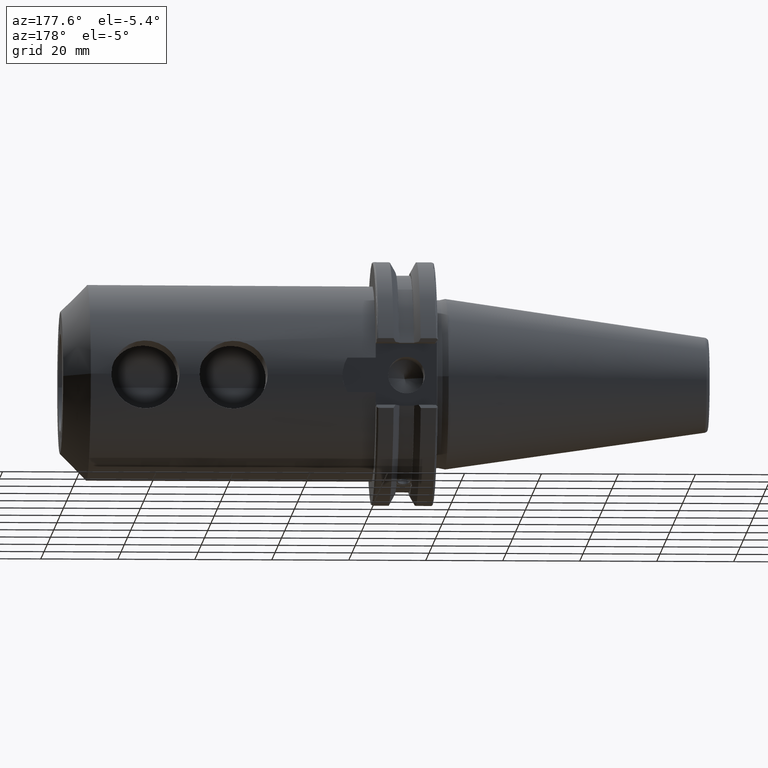
[diagram: clean part render]
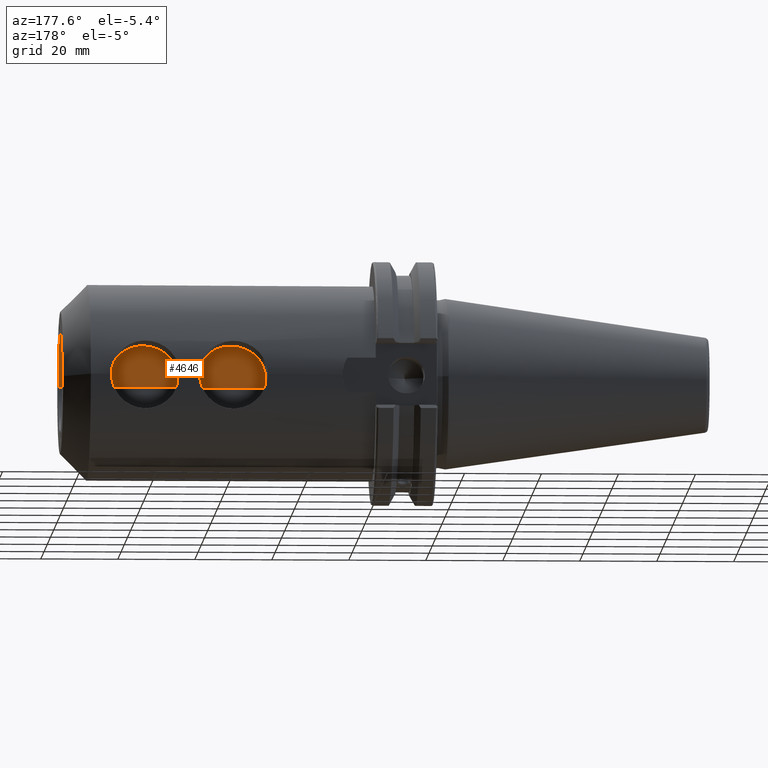
[diagram: same view with one face highlighted and labeled with its STEP entity id]
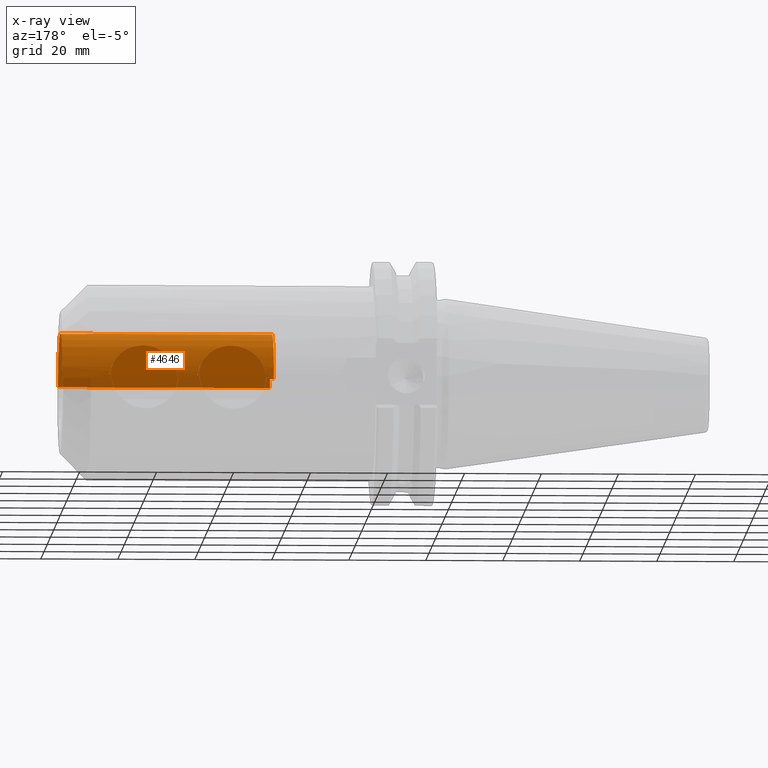
[diagram: x-ray of the same camera — body ghosted, the highlighted face saturated]
A machine part, auxiliary view. The second image highlights one B-rep face of the part: STEP entity #4646.
The next image is the same camera in x-ray: the body ghosted, the highlighted face saturated — about 8% of this face is hidden behind the body in this view.
In plain terms, the highlighted cylindrical surface (partial cylindrical patch) has radius 12.7 mm, axis along (1, 0, 0).
Its self-contained STEP definition (entity closure, byte-faithful):
#963=CARTESIAN_POINT('',(4.5E1,0.E0,0.E0));
#964=DIRECTION('',(1.E0,0.E0,0.E0));
#965=DIRECTION('',(0.E0,1.E0,0.E0));
#966=AXIS2_PLACEMENT_3D('',#963,#964,#965);
#989=DIRECTION('',(-1.E0,0.E0,0.E0));
#990=VECTOR('',#989,5.2E0);
#991=CARTESIAN_POINT('',(7.005E1,1.27E1,0.E0));
#992=LINE('',#991,#990);
#1014=DIRECTION('',(-1.E0,0.E0,0.E0));
#1015=VECTOR('',#1014,1.225E1);
#1016=CARTESIAN_POINT('',(1.E2,1.27E1,0.E0));
#1017=LINE('',#1016,#1015);
#1018=DIRECTION('',(-1.E0,0.E0,0.E0));
#1019=VECTOR('',#1018,5.5E1);
#1020=CARTESIAN_POINT('',(1.E2,-1.27E1,0.E0));
#1021=LINE('',#1020,#1019);
#1022=DIRECTION('',(-1.E0,0.E0,0.E0));
#1023=VECTOR('',#1022,2.15E0);
#1024=CARTESIAN_POINT('',(4.715E1,1.27E1,0.E0));
#1025=LINE('',#1024,#1023);
#1986=CARTESIAN_POINT('',(1.E2,0.E0,0.E0));
#1987=DIRECTION('',(1.E0,0.E0,0.E0));
#1988=DIRECTION('',(0.E0,1.E0,0.E0));
#1989=AXIS2_PLACEMENT_3D('',#1986,#1987,#1988);
#2036=CARTESIAN_POINT('',(4.715E1,1.27E1,0.E0));
#2037=CARTESIAN_POINT('',(4.715E1,1.27E1,5.563884474308E-1));
#2038=CARTESIAN_POINT('',(4.725072212443E1,1.262938159951E1,1.660641795529E0));
#2039=CARTESIAN_POINT('',(4.774431295707E1,1.229041067188E1,3.336053542291E0));
#2040=CARTESIAN_POINT('',(4.849654190077E1,1.179500249707E1,4.782429400616E0));
#2041=CARTESIAN_POINT('',(4.947679831123E1,1.119228425628E1,6.051278735868E0));
#2042=CARTESIAN_POINT('',(5.066338349235E1,1.053727068019E1,7.121190732831E0));
#2043=CARTESIAN_POINT('',(5.205986629046E1,9.893856332030E0,7.981560958703E0));
#2044=CARTESIAN_POINT('',(5.363104221772E1,9.364091712719E0,8.586080129339E0));
#2045=CARTESIAN_POINT('',(5.532052436495E1,9.090112058371E0,8.869123728081E0));
#2046=CARTESIAN_POINT('',(5.677413153862E1,9.097258907566E0,8.861997421768E0));
#2047=CARTESIAN_POINT('',(5.847296703081E1,9.391083508633E0,8.557244532327E0));
#2048=CARTESIAN_POINT('',(6.003518154509E1,9.933059887295E0,7.933384034520E0));
#2049=CARTESIAN_POINT('',(6.141229796415E1,1.057657854978E1,7.062801538793E0));
#2050=CARTESIAN_POINT('',(6.257633877491E1,1.122387157703E1,5.991901483512E0));
#2051=CARTESIAN_POINT('',(6.353491116155E1,1.181533216609E1,4.730551710827E0));
#2052=CARTESIAN_POINT('',(6.427031245631E1,1.230036902785E1,3.296584384085E0));
#2053=CARTESIAN_POINT('',(6.475243886877E1,1.263160414054E1,1.636917244227E0));
#2054=CARTESIAN_POINT('',(6.485E1,1.27E1,5.479562780156E-1));
#2055=CARTESIAN_POINT('',(6.485E1,1.27E1,0.E0));
#2057=CARTESIAN_POINT('',(7.005E1,1.27E1,0.E0));
#2058=CARTESIAN_POINT('',(7.005E1,1.27E1,5.488737394251E-1));
#2059=CARTESIAN_POINT('',(7.014885547603E1,1.263072529907E1,1.644246490979E0));
#2060=CARTESIAN_POINT('',(7.063306288112E1,1.229798599370E1,3.311352010769E0));
#2061=CARTESIAN_POINT('',(7.140240548339E1,1.179082093632E1,4.795214250760E0));
#2062=CARTESIAN_POINT('',(7.237496317640E1,1.119486270154E1,6.041121470910E0));
#2063=CARTESIAN_POINT('',(7.347699563615E1,1.058215659813E1,7.054066232889E0));
#2064=CARTESIAN_POINT('',(7.491487746039E1,9.910020913308E0,7.963814529565E0));
#2065=CARTESIAN_POINT('',(7.650246897953E1,9.371520620420E0,8.577765106477E0));
#2066=CARTESIAN_POINT('',(7.818602061271E1,9.092939612749E0,8.866380602738E0));
#2067=CARTESIAN_POINT('',(7.964301800143E1,9.094426787882E0,8.864802753240E0));
#2068=CARTESIAN_POINT('',(8.134391743842E1,9.383148898145E0,8.565816962873E0));
#2069=CARTESIAN_POINT('',(8.291403659123E1,9.924105609411E0,7.944524033420E0));
#2070=CARTESIAN_POINT('',(8.429671812337E1,1.056844779689E1,7.075005211938E0));
#2071=CARTESIAN_POINT('',(8.546620579202E1,1.121782112447E1,6.003374836927E0));
#2072=CARTESIAN_POINT('',(8.642880739774E1,1.181138985484E1,4.740625622630E0));
#2073=CARTESIAN_POINT('',(8.716749996655E1,1.229845089840E1,3.304305037445E0));
#2074=CARTESIAN_POINT('',(8.765195334268E1,1.263126200979E1,1.640940607106E0));
#2075=CARTESIAN_POINT('',(8.775E1,1.27E1,5.493388351448E-1));
#2076=CARTESIAN_POINT('',(8.775E1,1.27E1,0.E0));
#2618=CARTESIAN_POINT('',(4.5E1,1.27E1,0.E0));
#2619=CARTESIAN_POINT('',(4.5E1,-1.27E1,0.E0));
#2620=VERTEX_POINT('',#2618);
#2621=VERTEX_POINT('',#2619);
#2630=CARTESIAN_POINT('',(1.E2,1.27E1,0.E0));
#2631=CARTESIAN_POINT('',(1.E2,-1.27E1,0.E0));
#2632=VERTEX_POINT('',#2630);
#2633=VERTEX_POINT('',#2631);
#2636=VERTEX_POINT('',#2057);
#2637=VERTEX_POINT('',#2076);
#2671=VERTEX_POINT('',#2036);
#2672=VERTEX_POINT('',#2055);
#4629=CARTESIAN_POINT('',(-2.603070289212E1,0.E0,0.E0));
#4630=DIRECTION('',(1.E0,0.E0,0.E0));
#4631=DIRECTION('',(0.E0,-1.E0,0.E0));
#4632=AXIS2_PLACEMENT_3D('',#4629,#4630,#4631);
#4633=CYLINDRICAL_SURFACE('',#4632,1.27E1);
#4635=ORIENTED_EDGE('',*,*,#4634,.F.);
#4636=ORIENTED_EDGE('',*,*,#3650,.T.);
#4637=ORIENTED_EDGE('',*,*,#3627,.T.);
#4638=ORIENTED_EDGE('',*,*,#3647,.F.);
#4639=ORIENTED_EDGE('',*,*,#4611,.F.);
#4640=ORIENTED_EDGE('',*,*,#3643,.T.);
#4642=ORIENTED_EDGE('',*,*,#4641,.F.);
#4643=ORIENTED_EDGE('',*,*,#3639,.T.);
#4644=EDGE_LOOP('',(#4635,#4636,#4637,#4638,#4639,#4640,#4642,#4643));
#4645=FACE_OUTER_BOUND('',#4644,.F.);
#4646=ADVANCED_FACE('',(#4645),#4633,.F.);
#967=CIRCLE('',#966,1.27E1);
#1990=CIRCLE('',#1989,1.27E1);
#2056=B_SPLINE_CURVE_WITH_KNOTS('',3,(#2036,#2037,#2038,#2039,#2040,#2041,#2042,
#2043,#2044,#2045,#2046,#2047,#2048,#2049,#2050,#2051,#2052,#2053,#2054,#2055),
.UNSPECIFIED.,.F.,.F.,(4,1,1,1,1,1,1,1,1,1,1,1,1,1,1,1,1,4),(0.E0,
5.882352941176E-2,1.176470588235E-1,1.764705882353E-1,2.352941176471E-1,
2.941176470588E-1,3.529411764706E-1,4.117647058824E-1,4.705882352941E-1,
5.294117647059E-1,5.882352941176E-1,6.470588235294E-1,7.058823529412E-1,
7.647058823529E-1,8.235294117647E-1,8.823529411765E-1,9.411764705882E-1,1.E0),
.UNSPECIFIED.);
#2077=B_SPLINE_CURVE_WITH_KNOTS('',3,(#2057,#2058,#2059,#2060,#2061,#2062,#2063,
#2064,#2065,#2066,#2067,#2068,#2069,#2070,#2071,#2072,#2073,#2074,#2075,#2076),
.UNSPECIFIED.,.F.,.F.,(4,1,1,1,1,1,1,1,1,1,1,1,1,1,1,1,1,4),(0.E0,
5.882352941176E-2,1.176470588235E-1,1.764705882353E-1,2.352941176471E-1,
2.941176470588E-1,3.529411764706E-1,4.117647058824E-1,4.705882352941E-1,
5.294117647059E-1,5.882352941176E-1,6.470588235294E-1,7.058823529412E-1,
7.647058823529E-1,8.235294117647E-1,8.823529411765E-1,9.411764705882E-1,1.E0),
.UNSPECIFIED.);
#3627=EDGE_CURVE('',#2620,#2621,#967,.T.);
#3639=EDGE_CURVE('',#2636,#2672,#992,.T.);
#3643=EDGE_CURVE('',#2632,#2637,#1017,.T.);
#3647=EDGE_CURVE('',#2633,#2621,#1021,.T.);
#3650=EDGE_CURVE('',#2671,#2620,#1025,.T.);
#4611=EDGE_CURVE('',#2632,#2633,#1990,.T.);
#4634=EDGE_CURVE('',#2671,#2672,#2056,.T.);
#4641=EDGE_CURVE('',#2636,#2637,#2077,.T.);